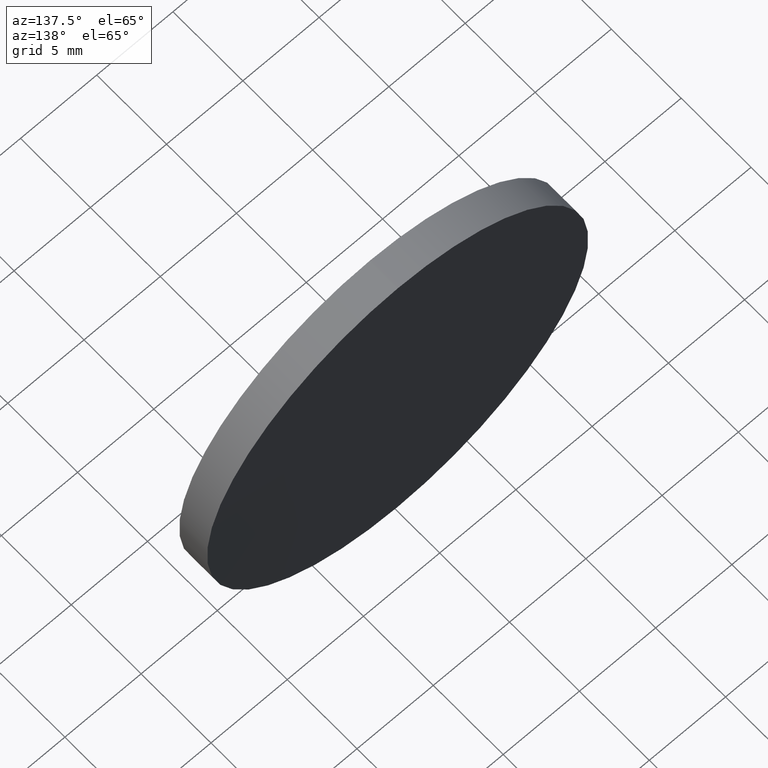
[diagram: clean part render]
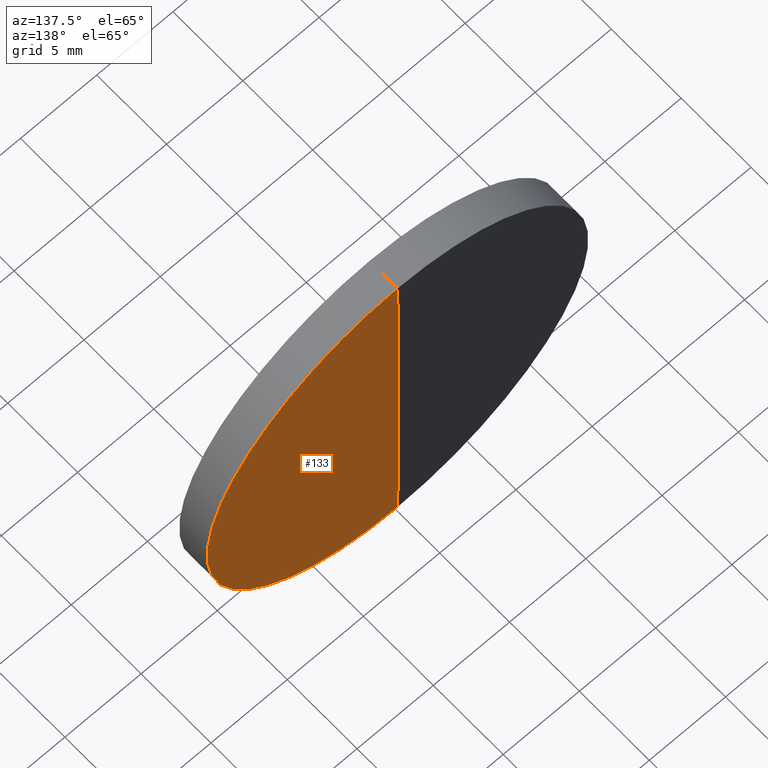
[diagram: same view with one face highlighted and labeled with its STEP entity id]
A machine part, auxiliary view. The second image highlights one B-rep face of the part: STEP entity #133.
In plain terms, the highlighted toroidal blend (fillet) surface has major radius 3.0459 mm and minor (blend) radius 1292 mm.
Its self-contained STEP definition (entity closure, byte-faithful):
#1 = DIRECTION ( 'NONE',  ( 0.000000000000000000, 0.000000000000000000, 1.000000000000000000 ) ) ;
#5 = CARTESIAN_POINT ( 'NONE',  ( 0.000000000000000000, -1289.965409658435419, 3.045887344046879885 ) ) ;
#9 = CARTESIAN_POINT ( 'NONE',  ( 0.000000000000000000, 2.000000000000000000, 12.49999999999517009 ) ) ;
#12 = AXIS2_PLACEMENT_3D ( 'NONE', #28, #89, #194 ) ;
#20 = ORIENTED_EDGE ( 'NONE', *, *, #95, .F. ) ;
#21 = AXIS2_PLACEMENT_3D ( 'NONE', #90, #150, #30 ) ;
#27 = ORIENTED_EDGE ( 'NONE', *, *, #34, .T. ) ;
#28 = CARTESIAN_POINT ( 'NONE',  ( 0.000000000000000000, -1289.965409658435419, 0.000000000000000000 ) ) ;
#30 = DIRECTION ( 'NONE',  ( 1.224646799147353207E-16, 0.000000000000000000, -1.000000000000000000 ) ) ;
#31 = CIRCLE ( 'NONE', #102, 12.50000000000000000 ) ;
#34 = EDGE_CURVE ( 'NONE', #164, #167, #112, .T. ) ;
#45 = EDGE_LOOP ( 'NONE', ( #157, #27, #20 ) ) ;
#58 = CIRCLE ( 'NONE', #113, 1292.000000000000000 ) ;
#61 = CARTESIAN_POINT ( 'NONE',  ( 0.000000000000000000, 2.031000000000000139, 0.000000000000000000 ) ) ;
#89 = DIRECTION ( 'NONE',  ( -0.000000000000000000, 1.000000000000000000, -0.000000000000000000 ) ) ;
#90 = CARTESIAN_POINT ( 'NONE',  ( 3.730136186450443837E-16, -1289.965409658435419, -3.045887344046879885 ) ) ;
#92 = TOROIDAL_SURFACE ( 'NONE', #12, 3.045887344046879885, 1292.000000000000000 ) ;
#95 = EDGE_CURVE ( 'NONE', #108, #167, #58, .T. ) ;
#102 = AXIS2_PLACEMENT_3D ( 'NONE', #125, #200, #1 ) ;
#108 = VERTEX_POINT ( 'NONE', #9 ) ;
#112 = CIRCLE ( 'NONE', #21, 1292.000000000000000 ) ;
#113 = AXIS2_PLACEMENT_3D ( 'NONE', #5, #148, #166 ) ;
#125 = CARTESIAN_POINT ( 'NONE',  ( 0.000000000000000000, 1.999999999999998224, 0.000000000000000000 ) ) ;
#133 = ADVANCED_FACE ( 'NONE', ( #181 ), #92, .T. ) ;
#148 = DIRECTION ( 'NONE',  ( -1.000000000000000000, 0.000000000000000000, 0.000000000000000000 ) ) ;
#150 = DIRECTION ( 'NONE',  ( 1.000000000000000000, 0.000000000000000000, 1.224646799147353207E-16 ) ) ;
#157 = ORIENTED_EDGE ( 'NONE', *, *, #197, .T. ) ;
#164 = VERTEX_POINT ( 'NONE', #168 ) ;
#166 = DIRECTION ( 'NONE',  ( 0.000000000000000000, 0.000000000000000000, 1.000000000000000000 ) ) ;
#167 = VERTEX_POINT ( 'NONE', #61 ) ;
#168 = CARTESIAN_POINT ( 'NONE',  ( 1.530808498933599678E-15, 2.000000000000000000, -12.49999999999517009 ) ) ;
#181 = FACE_OUTER_BOUND ( 'NONE', #45, .T. ) ;
#194 = DIRECTION ( 'NONE',  ( 0.000000000000000000, 0.000000000000000000, 1.000000000000000000 ) ) ;
#197 = EDGE_CURVE ( 'NONE', #108, #164, #31, .T. ) ;
#200 = DIRECTION ( 'NONE',  ( -0.000000000000000000, 1.000000000000000000, -0.000000000000000000 ) ) ;